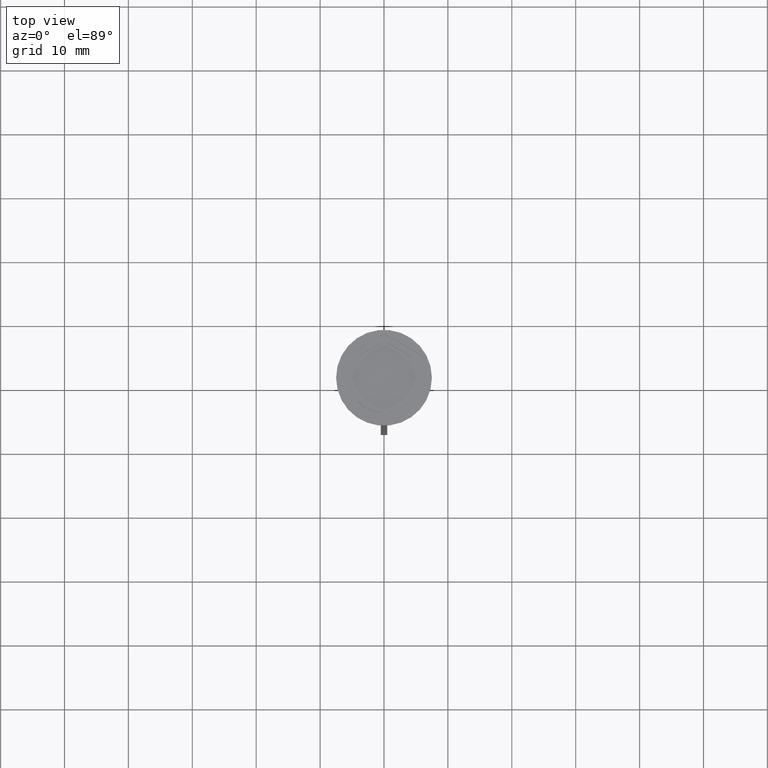
[diagram: clean part render]
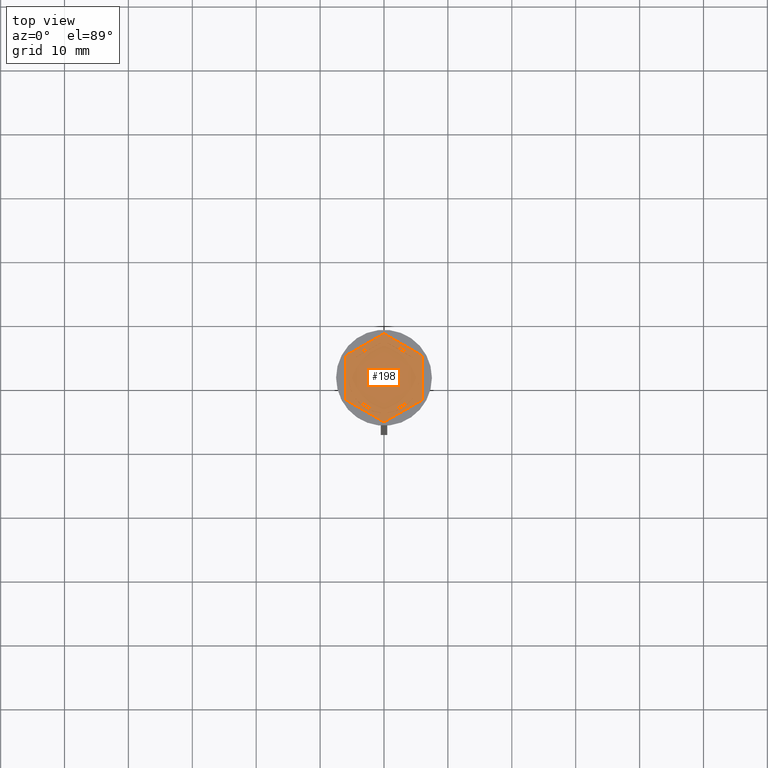
[diagram: same view with one face highlighted and labeled with its STEP entity id]
A machine part, top view. The second image highlights one B-rep face of the part: STEP entity #198.
In plain terms, the highlighted planar face has unit normal (0, 0, 1).
Its self-contained STEP definition (entity closure, byte-faithful):
#18 = VECTOR ( 'NONE', #2015, 1000.000000000000000 ) ;
#29 = AXIS2_PLACEMENT_3D ( 'NONE', #2306, #2132, #1548 ) ;
#51 = LINE ( 'NONE', #1939, #2282 ) ;
#55 = DIRECTION ( 'NONE',  ( 0.000000000000000000, 0.000000000000000000, 1.000000000000000000 ) ) ;
#58 = AXIS2_PLACEMENT_3D ( 'NONE', #2454, #746, #2296 ) ;
#65 = DIRECTION ( 'NONE',  ( 2.503857664561932376E-16, 1.000000000000000000, 0.000000000000000000 ) ) ;
#70 = AXIS2_PLACEMENT_3D ( 'NONE', #245, #55, #2183 ) ;
#71 = CARTESIAN_POINT ( 'NONE',  ( -6.000000000000000000, -3.464101615137755719, -1.000000000000000000 ) ) ;
#77 = LINE ( 'NONE', #475, #1492 ) ;
#79 = EDGE_CURVE ( 'NONE', #112, #1766, #2119, .T. ) ;
#85 = DIRECTION ( 'NONE',  ( 0.000000000000000000, 0.000000000000000000, 1.000000000000000000 ) ) ;
#87 = EDGE_CURVE ( 'NONE', #933, #1169, #2455, .T. ) ;
#89 = CARTESIAN_POINT ( 'NONE',  ( 4.484313483298445036, -3.184483095183233026, -1.000000000000000888 ) ) ;
#112 = VERTEX_POINT ( 'NONE', #343 ) ;
#114 = EDGE_CURVE ( 'NONE', #2324, #1272, #612, .T. ) ;
#121 = EDGE_CURVE ( 'NONE', #1813, #334, #2196, .T. ) ;
#130 = DIRECTION ( 'NONE',  ( 1.000000000000000000, 0.000000000000000000, 0.000000000000000000 ) ) ;
#134 = LINE ( 'NONE', #1333, #474 ) ;
#137 = VERTEX_POINT ( 'NONE', #892 ) ;
#198 = ADVANCED_FACE ( 'NONE', ( #1486, #921, #516, #2027, #1299, #295, #1066 ), #2303, .T. ) ;
#206 = CARTESIAN_POINT ( 'NONE',  ( -6.000000000000000000, -3.464101615137755719, -1.000000000000000000 ) ) ;
#214 = CIRCLE ( 'NONE', #630, 5.500000000000001776 ) ;
#219 = AXIS2_PLACEMENT_3D ( 'NONE', #1322, #1301, #130 ) ;
#245 = CARTESIAN_POINT ( 'NONE',  ( 0.000000000000000000, 0.000000000000000000, -1.000000000000000000 ) ) ;
#249 = EDGE_CURVE ( 'NONE', #334, #1813, #214, .T. ) ;
#263 = EDGE_CURVE ( 'NONE', #646, #1093, #935, .T. ) ;
#293 = ORIENTED_EDGE ( 'NONE', *, *, #2209, .F. ) ;
#295 = FACE_BOUND ( 'NONE', #1952, .T. ) ;
#311 = VERTEX_POINT ( 'NONE', #2332 ) ;
#313 = EDGE_CURVE ( 'NONE', #1113, #2255, #1351, .T. ) ;
#332 = CARTESIAN_POINT ( 'NONE',  ( 0.000000000000000000, 6.928203230275506996, -1.000000000000000000 ) ) ;
#334 = VERTEX_POINT ( 'NONE', #2131 ) ;
#343 = CARTESIAN_POINT ( 'NONE',  ( 4.484313483298442371, 3.184483095183238355, -1.000000000000000888 ) ) ;
#345 = CARTESIAN_POINT ( 'NONE',  ( -0.5156865167015569629, 5.475770942661155161, -1.000000000000000888 ) ) ;
#346 = CARTESIAN_POINT ( 'NONE',  ( -4.484313483298445036, -3.184483095183233470, -1.000000000000000888 ) ) ;
#368 = CARTESIAN_POINT ( 'NONE',  ( 0.000000000000000000, 0.000000000000000000, -1.000000000000000000 ) ) ;
#377 = CARTESIAN_POINT ( 'NONE',  ( 4.336808689942017736E-16, 5.773502691896259087, -1.000000000000000888 ) ) ;
#393 = ORIENTED_EDGE ( 'NONE', *, *, #87, .F. ) ;
#397 = DIRECTION ( 'NONE',  ( 0.8660254037844387076, -0.4999999999999998335, 0.000000000000000000 ) ) ;
#417 = CARTESIAN_POINT ( 'NONE',  ( -5.000000000000000888, 2.291287847477921247, -1.000000000000000888 ) ) ;
#442 = CARTESIAN_POINT ( 'NONE',  ( 6.000000000000000000, 3.464101615137753942, -1.000000000000000000 ) ) ;
#445 = EDGE_CURVE ( 'NONE', #1955, #2232, #1592, .T. ) ;
#458 = CARTESIAN_POINT ( 'NONE',  ( -5.000000000000000888, -2.291287847477921247, -1.000000000000000888 ) ) ;
#474 = VECTOR ( 'NONE', #906, 1000.000000000000227 ) ;
#475 = CARTESIAN_POINT ( 'NONE',  ( 5.999999999999998224, -3.464101615137753942, -1.000000000000000000 ) ) ;
#503 = ORIENTED_EDGE ( 'NONE', *, *, #79, .F. ) ;
#509 = VECTOR ( 'NONE', #1045, 1000.000000000000000 ) ;
#516 = FACE_BOUND ( 'NONE', #2060, .T. ) ;
#547 = DIRECTION ( 'NONE',  ( 0.000000000000000000, 0.000000000000000000, 1.000000000000000000 ) ) ;
#564 = CIRCLE ( 'NONE', #1544, 5.500000000000001776 ) ;
#612 = LINE ( 'NONE', #206, #2078 ) ;
#630 = AXIS2_PLACEMENT_3D ( 'NONE', #368, #1134, #923 ) ;
#635 = CIRCLE ( 'NONE', #219, 5.500000000000001776 ) ;
#646 = VERTEX_POINT ( 'NONE', #89 ) ;
#689 = CARTESIAN_POINT ( 'NONE',  ( 0.5156865167015596274, 5.475770942661155161, -1.000000000000000888 ) ) ;
#709 = CARTESIAN_POINT ( 'NONE',  ( 6.000000000000000000, 3.464101615137753942, -1.000000000000000000 ) ) ;
#723 = DIRECTION ( 'NONE',  ( 0.000000000000000000, 1.000000000000000000, 0.000000000000000000 ) ) ;
#724 = EDGE_CURVE ( 'NONE', #1572, #311, #635, .T. ) ;
#746 = DIRECTION ( 'NONE',  ( 0.000000000000000000, 0.000000000000000000, 1.000000000000000000 ) ) ;
#757 = DIRECTION ( 'NONE',  ( -0.8660254037844387076, -0.4999999999999997224, 0.000000000000000000 ) ) ;
#760 = CARTESIAN_POINT ( 'NONE',  ( 0.000000000000000000, 0.000000000000000000, -1.000000000000000000 ) ) ;
#820 = LINE ( 'NONE', #1406, #1608 ) ;
#823 = AXIS2_PLACEMENT_3D ( 'NONE', #760, #2406, #1699 ) ;
#833 = EDGE_CURVE ( 'NONE', #1766, #112, #820, .T. ) ;
#836 = CARTESIAN_POINT ( 'NONE',  ( -5.000000000000000888, -2.886751345948129099, -1.000000000000000888 ) ) ;
#857 = EDGE_CURVE ( 'NONE', #2232, #1594, #51, .T. ) ;
#892 = CARTESIAN_POINT ( 'NONE',  ( 5.999999999999998224, -3.464101615137753942, -1.000000000000000000 ) ) ;
#895 = EDGE_CURVE ( 'NONE', #311, #1572, #2420, .T. ) ;
#906 = DIRECTION ( 'NONE',  ( 0.8660254037844385966, 0.5000000000000000000, 0.000000000000000000 ) ) ;
#921 = FACE_BOUND ( 'NONE', #2449, .T. ) ;
#923 = DIRECTION ( 'NONE',  ( 1.000000000000000000, 0.000000000000000000, 0.000000000000000000 ) ) ;
#933 = VERTEX_POINT ( 'NONE', #458 ) ;
#935 = LINE ( 'NONE', #1708, #1641 ) ;
#943 = CARTESIAN_POINT ( 'NONE',  ( -4.484313483298445036, 3.184483095183233470, -1.000000000000000888 ) ) ;
#979 = EDGE_CURVE ( 'NONE', #137, #1955, #77, .T. ) ;
#1002 = EDGE_LOOP ( 'NONE', ( #1139, #1458 ) ) ;
#1014 = CARTESIAN_POINT ( 'NONE',  ( -4.280685092543093048E-16, -6.928203230275507885, -1.000000000000000000 ) ) ;
#1045 = DIRECTION ( 'NONE',  ( -0.8660254037844387076, 0.4999999999999998335, 0.000000000000000000 ) ) ;
#1049 = CARTESIAN_POINT ( 'NONE',  ( -5.000000000000000888, 2.886751345948129099, -1.000000000000000888 ) ) ;
#1066 = FACE_OUTER_BOUND ( 'NONE', #1752, .T. ) ;
#1093 = VERTEX_POINT ( 'NONE', #1123 ) ;
#1106 = VERTEX_POINT ( 'NONE', #1293 ) ;
#1113 = VERTEX_POINT ( 'NONE', #943 ) ;
#1119 = VECTOR ( 'NONE', #1149, 1000.000000000000000 ) ;
#1123 = CARTESIAN_POINT ( 'NONE',  ( 0.5156865167015526330, -5.475770942661155161, -1.000000000000000888 ) ) ;
#1133 = VECTOR ( 'NONE', #1697, 1000.000000000000000 ) ;
#1134 = DIRECTION ( 'NONE',  ( 0.000000000000000000, 0.000000000000000000, 1.000000000000000000 ) ) ;
#1139 = ORIENTED_EDGE ( 'NONE', *, *, #724, .F. ) ;
#1148 = EDGE_CURVE ( 'NONE', #1272, #137, #134, .T. ) ;
#1149 = DIRECTION ( 'NONE',  ( 0.8660254037844385966, 0.5000000000000001110, -0.000000000000000000 ) ) ;
#1165 = VECTOR ( 'NONE', #2037, 1000.000000000000000 ) ;
#1169 = VERTEX_POINT ( 'NONE', #417 ) ;
#1184 = CARTESIAN_POINT ( 'NONE',  ( -6.000000000000000000, 3.464101615137752166, -1.000000000000000000 ) ) ;
#1202 = ORIENTED_EDGE ( 'NONE', *, *, #833, .F. ) ;
#1257 = CARTESIAN_POINT ( 'NONE',  ( 4.999999999999999112, -2.886751345948130432, -1.000000000000000888 ) ) ;
#1263 = DIRECTION ( 'NONE',  ( 1.000000000000000000, 0.000000000000000000, 0.000000000000000000 ) ) ;
#1272 = VERTEX_POINT ( 'NONE', #1014 ) ;
#1282 = LINE ( 'NONE', #1842, #1133 ) ;
#1293 = CARTESIAN_POINT ( 'NONE',  ( -5.500000000000001776, 0.000000000000000000, -1.000000000000000000 ) ) ;
#1297 = CIRCLE ( 'NONE', #70, 5.500000000000001776 ) ;
#1299 = FACE_BOUND ( 'NONE', #1469, .T. ) ;
#1301 = DIRECTION ( 'NONE',  ( 0.000000000000000000, 0.000000000000000000, 1.000000000000000000 ) ) ;
#1308 = EDGE_CURVE ( 'NONE', #2255, #1113, #1803, .T. ) ;
#1322 = CARTESIAN_POINT ( 'NONE',  ( 0.000000000000000000, 0.000000000000000000, -1.000000000000000000 ) ) ;
#1333 = CARTESIAN_POINT ( 'NONE',  ( -4.280685092543093048E-16, -6.928203230275507885, -1.000000000000000000 ) ) ;
#1351 = LINE ( 'NONE', #377, #1119 ) ;
#1355 = EDGE_LOOP ( 'NONE', ( #503, #1202 ) ) ;
#1367 = ORIENTED_EDGE ( 'NONE', *, *, #249, .F. ) ;
#1401 = ORIENTED_EDGE ( 'NONE', *, *, #1148, .T. ) ;
#1406 = CARTESIAN_POINT ( 'NONE',  ( 5.000000000000000888, 2.886751345948130876, -1.000000000000000888 ) ) ;
#1431 = ORIENTED_EDGE ( 'NONE', *, *, #857, .T. ) ;
#1458 = ORIENTED_EDGE ( 'NONE', *, *, #895, .F. ) ;
#1469 = EDGE_LOOP ( 'NONE', ( #1633, #393, #1933 ) ) ;
#1486 = FACE_BOUND ( 'NONE', #1355, .T. ) ;
#1492 = VECTOR ( 'NONE', #65, 1000.000000000000000 ) ;
#1502 = ORIENTED_EDGE ( 'NONE', *, *, #979, .T. ) ;
#1544 = AXIS2_PLACEMENT_3D ( 'NONE', #1711, #547, #2468 ) ;
#1548 = DIRECTION ( 'NONE',  ( 1.000000000000000000, 0.000000000000000000, 0.000000000000000000 ) ) ;
#1572 = VERTEX_POINT ( 'NONE', #346 ) ;
#1592 = LINE ( 'NONE', #442, #509 ) ;
#1594 = VERTEX_POINT ( 'NONE', #1184 ) ;
#1606 = DIRECTION ( 'NONE',  ( -0.8660254037844385966, -0.4999999999999998890, 0.000000000000000000 ) ) ;
#1608 = VECTOR ( 'NONE', #397, 1000.000000000000114 ) ;
#1633 = ORIENTED_EDGE ( 'NONE', *, *, #2358, .F. ) ;
#1641 = VECTOR ( 'NONE', #757, 1000.000000000000114 ) ;
#1667 = ORIENTED_EDGE ( 'NONE', *, *, #1308, .F. ) ;
#1683 = EDGE_CURVE ( 'NONE', #1106, #933, #2126, .T. ) ;
#1690 = AXIS2_PLACEMENT_3D ( 'NONE', #1809, #85, #1263 ) ;
#1697 = DIRECTION ( 'NONE',  ( 0.000000000000000000, -1.000000000000000000, 0.000000000000000000 ) ) ;
#1699 = DIRECTION ( 'NONE',  ( 1.000000000000000000, 0.000000000000000000, 0.000000000000000000 ) ) ;
#1708 = CARTESIAN_POINT ( 'NONE',  ( -1.734723475976807094E-15, -5.773502691896258199, -1.000000000000000888 ) ) ;
#1711 = CARTESIAN_POINT ( 'NONE',  ( 0.000000000000000000, 0.000000000000000000, -1.000000000000000000 ) ) ;
#1715 = ORIENTED_EDGE ( 'NONE', *, *, #114, .T. ) ;
#1752 = EDGE_LOOP ( 'NONE', ( #2428, #1431, #1792, #1715, #1401, #1502 ) ) ;
#1766 = VERTEX_POINT ( 'NONE', #689 ) ;
#1792 = ORIENTED_EDGE ( 'NONE', *, *, #1929, .T. ) ;
#1803 = CIRCLE ( 'NONE', #1690, 5.500000000000001776 ) ;
#1807 = CARTESIAN_POINT ( 'NONE',  ( 5.000000000000000888, 2.291287847477922135, -1.000000000000000888 ) ) ;
#1809 = CARTESIAN_POINT ( 'NONE',  ( 0.000000000000000000, 0.000000000000000000, -1.000000000000000000 ) ) ;
#1813 = VERTEX_POINT ( 'NONE', #1807 ) ;
#1842 = CARTESIAN_POINT ( 'NONE',  ( -6.000000000000000000, 3.464101615137752166, -1.000000000000000000 ) ) ;
#1929 = EDGE_CURVE ( 'NONE', #1594, #2324, #1282, .T. ) ;
#1933 = ORIENTED_EDGE ( 'NONE', *, *, #1683, .F. ) ;
#1939 = CARTESIAN_POINT ( 'NONE',  ( 0.000000000000000000, 6.928203230275506996, -1.000000000000000000 ) ) ;
#1952 = EDGE_LOOP ( 'NONE', ( #1667, #2402 ) ) ;
#1955 = VERTEX_POINT ( 'NONE', #709 ) ;
#2015 = DIRECTION ( 'NONE',  ( -3.004629197474317076E-16, -1.000000000000000000, 0.000000000000000000 ) ) ;
#2027 = FACE_BOUND ( 'NONE', #1002, .T. ) ;
#2037 = DIRECTION ( 'NONE',  ( -0.8660254037844385966, 0.5000000000000001110, 0.000000000000000000 ) ) ;
#2060 = EDGE_LOOP ( 'NONE', ( #293, #2217 ) ) ;
#2078 = VECTOR ( 'NONE', #2180, 1000.000000000000114 ) ;
#2119 = CIRCLE ( 'NONE', #823, 5.500000000000001776 ) ;
#2126 = CIRCLE ( 'NONE', #29, 5.500000000000001776 ) ;
#2131 = CARTESIAN_POINT ( 'NONE',  ( 4.999999999999999112, -2.291287847477924355, -1.000000000000000888 ) ) ;
#2132 = DIRECTION ( 'NONE',  ( 0.000000000000000000, 0.000000000000000000, 1.000000000000000000 ) ) ;
#2152 = VECTOR ( 'NONE', #723, 1000.000000000000000 ) ;
#2180 = DIRECTION ( 'NONE',  ( 0.8660254037844388186, -0.4999999999999997224, 0.000000000000000000 ) ) ;
#2183 = DIRECTION ( 'NONE',  ( 1.000000000000000000, 0.000000000000000000, 0.000000000000000000 ) ) ;
#2196 = LINE ( 'NONE', #1257, #18 ) ;
#2209 = EDGE_CURVE ( 'NONE', #1093, #646, #564, .T. ) ;
#2212 = ORIENTED_EDGE ( 'NONE', *, *, #121, .F. ) ;
#2217 = ORIENTED_EDGE ( 'NONE', *, *, #263, .F. ) ;
#2232 = VERTEX_POINT ( 'NONE', #332 ) ;
#2255 = VERTEX_POINT ( 'NONE', #345 ) ;
#2282 = VECTOR ( 'NONE', #1606, 1000.000000000000227 ) ;
#2296 = DIRECTION ( 'NONE',  ( 1.000000000000000000, 0.000000000000000000, -0.000000000000000000 ) ) ;
#2303 = PLANE ( 'NONE',  #58 ) ;
#2306 = CARTESIAN_POINT ( 'NONE',  ( 0.000000000000000000, 0.000000000000000000, -1.000000000000000000 ) ) ;
#2324 = VERTEX_POINT ( 'NONE', #71 ) ;
#2332 = CARTESIAN_POINT ( 'NONE',  ( -0.5156865167015569629, -5.475770942661155161, -1.000000000000000888 ) ) ;
#2358 = EDGE_CURVE ( 'NONE', #1169, #1106, #1297, .T. ) ;
#2402 = ORIENTED_EDGE ( 'NONE', *, *, #313, .F. ) ;
#2406 = DIRECTION ( 'NONE',  ( 0.000000000000000000, 0.000000000000000000, 1.000000000000000000 ) ) ;
#2420 = LINE ( 'NONE', #836, #1165 ) ;
#2428 = ORIENTED_EDGE ( 'NONE', *, *, #445, .T. ) ;
#2449 = EDGE_LOOP ( 'NONE', ( #1367, #2212 ) ) ;
#2454 = CARTESIAN_POINT ( 'NONE',  ( 0.000000000000000000, 0.000000000000000000, -1.000000000000000000 ) ) ;
#2455 = LINE ( 'NONE', #1049, #2152 ) ;
#2468 = DIRECTION ( 'NONE',  ( 1.000000000000000000, 0.000000000000000000, 0.000000000000000000 ) ) ;